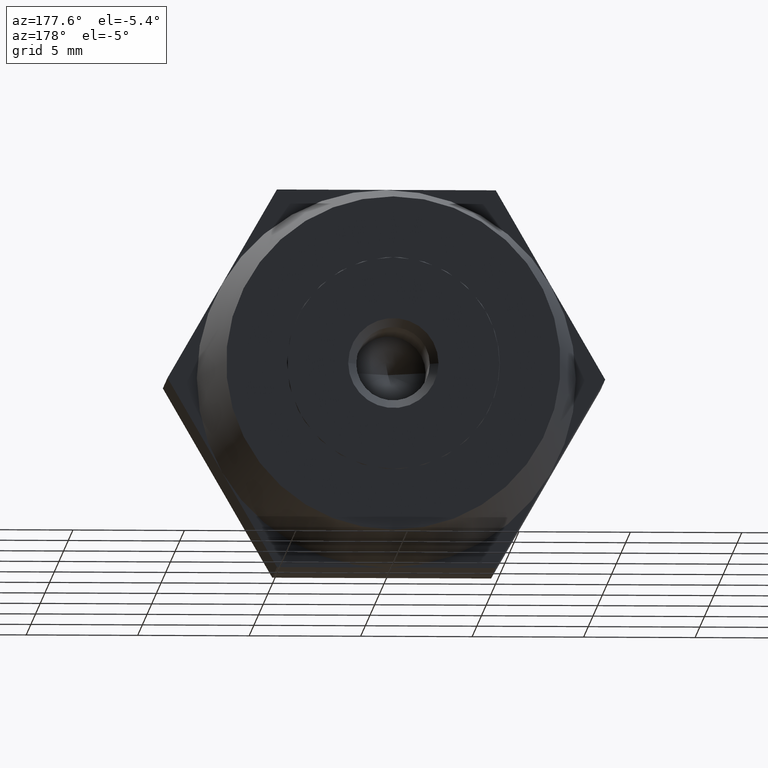
[diagram: clean part render]
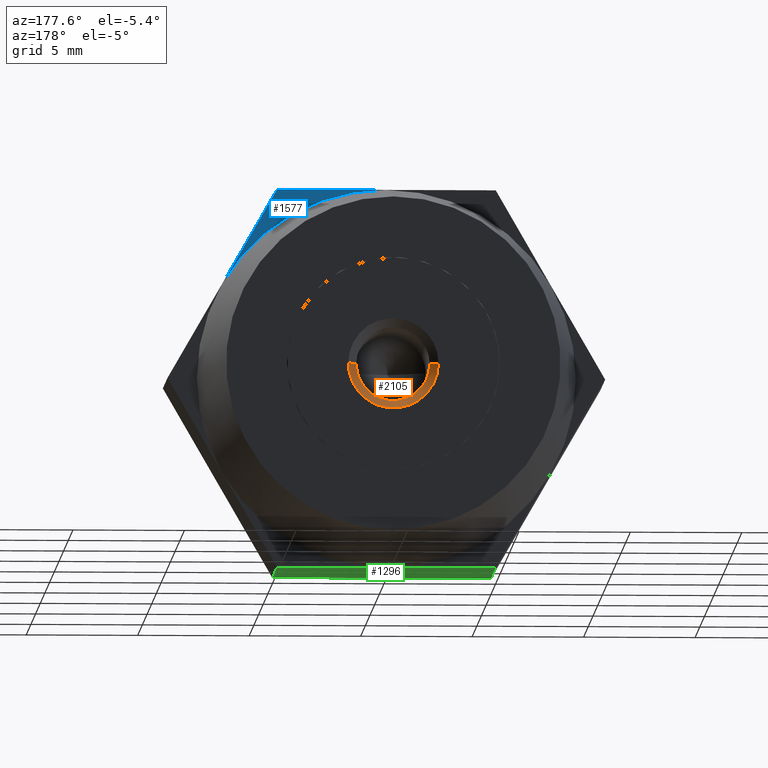
[diagram: same view with three faces highlighted in distinct colors, each labeled with its STEP entity id]
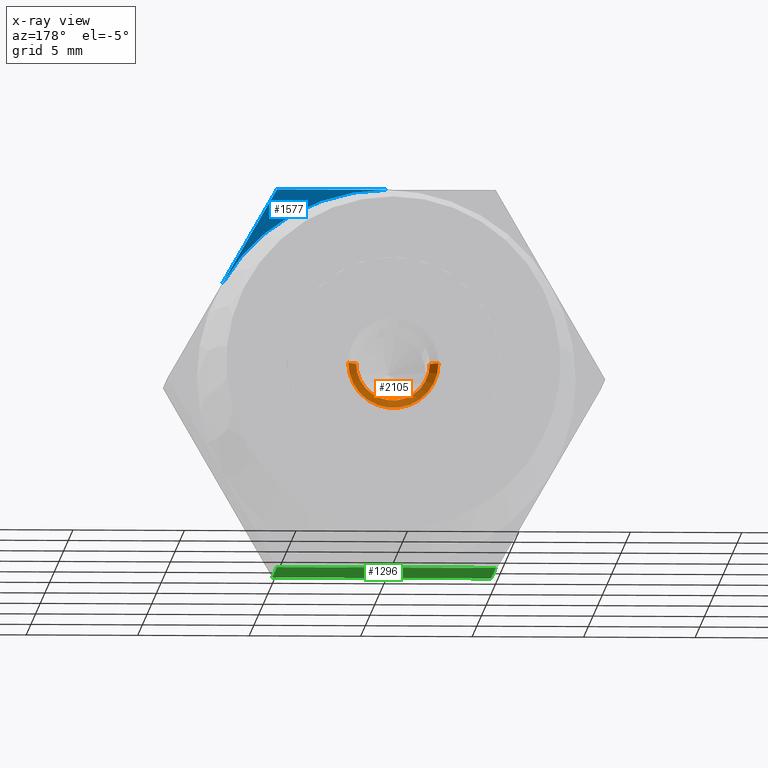
[diagram: x-ray of the same camera — body ghosted, the three highlighted faces saturated]
A machine part, auxiliary view with three faces highlighted in distinct colors.
The next image is the same camera in x-ray (body ghosted, the three faces saturated) — at least one of them is partly hidden behind the body in this view.
Their STEP definitions:

[orange] entity #2105 — the highlighted conical surface has half-angle 45 deg.
#78 = CARTESIAN_POINT ( 'NONE',  ( 0.0000000000000000000, 6.500000000000000000, 2.024999999999999900 ) ) ;
#82 = CARTESIAN_POINT ( 'NONE',  ( 2.479909768273389800E-016, 6.500000000000000000, -2.024999999999999900 ) ) ;
#103 = DIRECTION ( 'NONE',  ( 0.0000000000000000000, 0.7071067811865470200, 0.7071067811865480200 ) ) ;
#140 = DIRECTION ( 'NONE',  ( 0.0000000000000000000, 0.0000000000000000000, 1.000000000000000000 ) ) ;
#224 = FACE_OUTER_BOUND ( 'NONE', #770, .T. ) ;
#246 = DIRECTION ( 'NONE',  ( 0.0000000000000000000, 0.0000000000000000000, 1.000000000000000000 ) ) ;
#521 = EDGE_CURVE ( 'NONE', #2975, #1603, #1273, .T. ) ;
#567 = VERTEX_POINT ( 'NONE', #2158 ) ;
#770 = EDGE_LOOP ( 'NONE', ( #1065, #2261, #1220, #3234 ) ) ;
#853 = VECTOR ( 'NONE', #103, 1000.000000000000000 ) ;
#873 = CARTESIAN_POINT ( 'NONE',  ( 0.0000000000000000000, 6.125000000000000000, 1.649999999999999900 ) ) ;
#1065 = ORIENTED_EDGE ( 'NONE', *, *, #521, .F. ) ;
#1114 = EDGE_CURVE ( 'NONE', #2598, #2975, #1166, .T. ) ;
#1166 = CIRCLE ( 'NONE', #2487, 1.649999999999999900 ) ;
#1220 = ORIENTED_EDGE ( 'NONE', *, *, #3073, .T. ) ;
#1273 = LINE ( 'NONE', #82, #2401 ) ;
#1310 = CARTESIAN_POINT ( 'NONE',  ( 0.0000000000000000000, 6.500000000000000000, 0.0000000000000000000 ) ) ;
#1315 = DIRECTION ( 'NONE',  ( 0.0000000000000000000, 1.000000000000000000, 0.0000000000000000000 ) ) ;
#1525 = CARTESIAN_POINT ( 'NONE',  ( 2.020667218593132800E-016, 6.125000000000000000, -1.649999999999999900 ) ) ;
#1603 = VERTEX_POINT ( 'NONE', #1660 ) ;
#1644 = AXIS2_PLACEMENT_3D ( 'NONE', #3855, #3589, #246 ) ;
#1653 = LINE ( 'NONE', #78, #853 ) ;
#1658 = DIRECTION ( 'NONE',  ( 0.0000000000000000000, 1.000000000000000000, 0.0000000000000000000 ) ) ;
#1660 = CARTESIAN_POINT ( 'NONE',  ( 2.479909768273389800E-016, 6.500000000000000000, -2.024999999999999900 ) ) ;
#2105 = ADVANCED_FACE ( 'NONE', ( #224 ), #3748, .F. ) ;
#2158 = CARTESIAN_POINT ( 'NONE',  ( 0.0000000000000000000, 6.500000000000000000, 2.024999999999999900 ) ) ;
#2261 = ORIENTED_EDGE ( 'NONE', *, *, #1114, .F. ) ;
#2378 = AXIS2_PLACEMENT_3D ( 'NONE', #1310, #1658, #140 ) ;
#2401 = VECTOR ( 'NONE', #2776, 1000.000000000000000 ) ;
#2487 = AXIS2_PLACEMENT_3D ( 'NONE', #2555, #1315, #3432 ) ;
#2555 = CARTESIAN_POINT ( 'NONE',  ( 0.0000000000000000000, 6.125000000000000000, 0.0000000000000000000 ) ) ;
#2598 = VERTEX_POINT ( 'NONE', #873 ) ;
#2776 = DIRECTION ( 'NONE',  ( 8.659560562354939000E-017, 0.7071067811865470200, -0.7071067811865480200 ) ) ;
#2975 = VERTEX_POINT ( 'NONE', #1525 ) ;
#3073 = EDGE_CURVE ( 'NONE', #2598, #567, #1653, .T. ) ;
#3234 = ORIENTED_EDGE ( 'NONE', *, *, #3467, .T. ) ;
#3427 = CIRCLE ( 'NONE', #1644, 2.024999999999999900 ) ;
#3432 = DIRECTION ( 'NONE',  ( 0.0000000000000000000, 0.0000000000000000000, 1.000000000000000000 ) ) ;
#3467 = EDGE_CURVE ( 'NONE', #567, #1603, #3427, .T. ) ;
#3589 = DIRECTION ( 'NONE',  ( 0.0000000000000000000, 1.000000000000000000, 0.0000000000000000000 ) ) ;
#3748 = CONICAL_SURFACE ( 'NONE', #2378, 2.024999999999999900, 0.7853981633974490600 ) ;
#3855 = CARTESIAN_POINT ( 'NONE',  ( 0.0000000000000000000, 6.500000000000000000, 0.0000000000000000000 ) ) ;

[blue] entity #1577 — the highlighted planar face has unit normal (0, 1, 0).
#48 = EDGE_CURVE ( 'NONE', #3276, #3831, #1177, .T. ) ;
#666 = EDGE_LOOP ( 'NONE', ( #1683, #3461, #2641 ) ) ;
#869 = DIRECTION ( 'NONE',  ( 1.000000000000000000, 0.0000000000000000000, 1.767428939690774800E-016 ) ) ;
#1082 = CARTESIAN_POINT ( 'NONE',  ( -1.502314598737160000E-015, 2.500000000000000000, 8.500000000000000000 ) ) ;
#1093 = VECTOR ( 'NONE', #869, 1000.000000000000000 ) ;
#1134 = LINE ( 'NONE', #1899, #2798 ) ;
#1177 = LINE ( 'NONE', #3827, #1093 ) ;
#1577 = ADVANCED_FACE ( 'NONE', ( #2543 ), #2080, .T. ) ;
#1683 = ORIENTED_EDGE ( 'NONE', *, *, #3765, .F. ) ;
#1792 = CARTESIAN_POINT ( 'NONE',  ( 0.0000000000000000000, 2.500000000000000000, 0.0000000000000000000 ) ) ;
#1899 = CARTESIAN_POINT ( 'NONE',  ( 4.907477288111820700, 2.500000000000000000, 8.500000000000000000 ) ) ;
#1905 = DIRECTION ( 'NONE',  ( 0.0000000000000000000, 0.0000000000000000000, 1.000000000000000000 ) ) ;
#1962 = CARTESIAN_POINT ( 'NONE',  ( 4.907477288111820700, 2.500000000000000000, 8.500000000000000000 ) ) ;
#2080 = PLANE ( 'NONE',  #2563 ) ;
#2144 = CARTESIAN_POINT ( 'NONE',  ( 0.0000000000000000000, 2.500000000000000000, 0.0000000000000000000 ) ) ;
#2159 = DIRECTION ( 'NONE',  ( 0.0000000000000000000, 0.0000000000000000000, 1.000000000000000000 ) ) ;
#2182 = AXIS2_PLACEMENT_3D ( 'NONE', #2144, #2490, #2159 ) ;
#2245 = DIRECTION ( 'NONE',  ( 0.4999999999999998900, 0.0000000000000000000, -0.8660254037844387100 ) ) ;
#2480 = CARTESIAN_POINT ( 'NONE',  ( 7.361215932167730200, 2.500000000000000000, 4.250000000000000000 ) ) ;
#2490 = DIRECTION ( 'NONE',  ( 0.0000000000000000000, 1.000000000000000000, 0.0000000000000000000 ) ) ;
#2543 = FACE_OUTER_BOUND ( 'NONE', #666, .T. ) ;
#2563 = AXIS2_PLACEMENT_3D ( 'NONE', #1792, #2932, #1905 ) ;
#2602 = CIRCLE ( 'NONE', #2182, 8.500000000000000000 ) ;
#2641 = ORIENTED_EDGE ( 'NONE', *, *, #2807, .T. ) ;
#2798 = VECTOR ( 'NONE', #2245, 1000.000000000000000 ) ;
#2807 = EDGE_CURVE ( 'NONE', #3831, #3558, #1134, .T. ) ;
#2932 = DIRECTION ( 'NONE',  ( 0.0000000000000000000, 1.000000000000000000, 0.0000000000000000000 ) ) ;
#3276 = VERTEX_POINT ( 'NONE', #1082 ) ;
#3461 = ORIENTED_EDGE ( 'NONE', *, *, #48, .T. ) ;
#3558 = VERTEX_POINT ( 'NONE', #2480 ) ;
#3765 = EDGE_CURVE ( 'NONE', #3276, #3558, #2602, .T. ) ;
#3827 = CARTESIAN_POINT ( 'NONE',  ( -4.907477288111829600, 2.500000000000000000, 8.500000000000000000 ) ) ;
#3831 = VERTEX_POINT ( 'NONE', #1962 ) ;

[green] entity #1296 — the highlighted planar face has unit normal (0, 0, 1).
#19 = EDGE_CURVE ( 'NONE', #2049, #1268, #2041, .T. ) ;
#151 = CARTESIAN_POINT ( 'NONE',  ( 4.907477288111810100, 2.500000000000000000, -8.500000000000000000 ) ) ;
#273 = VECTOR ( 'NONE', #1720, 1000.000000000000000 ) ;
#291 = CARTESIAN_POINT ( 'NONE',  ( 4.907477288111810100, 2.500000000000000000, -8.500000000000000000 ) ) ;
#431 = FACE_OUTER_BOUND ( 'NONE', #1025, .T. ) ;
#444 = DIRECTION ( 'NONE',  ( 0.0000000000000000000, -1.000000000000000000, 0.0000000000000000000 ) ) ;
#517 = EDGE_CURVE ( 'NONE', #1104, #3357, #1950, .T. ) ;
#580 = DIRECTION ( 'NONE',  ( -1.000000000000000000, 0.0000000000000000000, 0.0000000000000000000 ) ) ;
#664 = LINE ( 'NONE', #711, #1986 ) ;
#711 = CARTESIAN_POINT ( 'NONE',  ( -4.907477288111829600, 2.500000000000000000, -8.500000000000000000 ) ) ;
#713 = VERTEX_POINT ( 'NONE', #968 ) ;
#786 = CARTESIAN_POINT ( 'NONE',  ( 4.907477288111810100, -2.500000000000000000, -8.500000000000000000 ) ) ;
#837 = LINE ( 'NONE', #3214, #273 ) ;
#886 = VERTEX_POINT ( 'NONE', #1841 ) ;
#901 = VECTOR ( 'NONE', #580, 1000.000000000000000 ) ;
#968 = CARTESIAN_POINT ( 'NONE',  ( -4.907477288111829600, -2.500000000000000000, -8.500000000000000000 ) ) ;
#1025 = EDGE_LOOP ( 'NONE', ( #2782, #3355, #3452, #1993, #1116, #1293 ) ) ;
#1059 = DIRECTION ( 'NONE',  ( -1.000000000000000000, 0.0000000000000000000, 0.0000000000000000000 ) ) ;
#1061 = CARTESIAN_POINT ( 'NONE',  ( -4.907477288111829600, 2.500000000000000000, -8.500000000000000000 ) ) ;
#1073 = PLANE ( 'NONE',  #1119 ) ;
#1104 = VERTEX_POINT ( 'NONE', #2239 ) ;
#1116 = ORIENTED_EDGE ( 'NONE', *, *, #1357, .F. ) ;
#1119 = AXIS2_PLACEMENT_3D ( 'NONE', #151, #1685, #3740 ) ;
#1131 = EDGE_CURVE ( 'NONE', #1268, #713, #664, .T. ) ;
#1268 = VERTEX_POINT ( 'NONE', #1061 ) ;
#1293 = ORIENTED_EDGE ( 'NONE', *, *, #517, .T. ) ;
#1296 = ADVANCED_FACE ( 'NONE', ( #431 ), #1073, .F. ) ;
#1327 = VECTOR ( 'NONE', #3655, 1000.000000000000000 ) ;
#1357 = EDGE_CURVE ( 'NONE', #1104, #2049, #837, .T. ) ;
#1475 = DIRECTION ( 'NONE',  ( -1.000000000000000000, 0.0000000000000000000, 0.0000000000000000000 ) ) ;
#1605 = VECTOR ( 'NONE', #1059, 1000.000000000000000 ) ;
#1685 = DIRECTION ( 'NONE',  ( 0.0000000000000000000, 0.0000000000000000000, 1.000000000000000000 ) ) ;
#1720 = DIRECTION ( 'NONE',  ( -1.000000000000000000, 0.0000000000000000000, 0.0000000000000000000 ) ) ;
#1809 = CARTESIAN_POINT ( 'NONE',  ( 4.907477288111810100, 2.500000000000000000, -8.500000000000000000 ) ) ;
#1841 = CARTESIAN_POINT ( 'NONE',  ( 0.0000000000000000000, -2.500000000000000000, -8.500000000000000000 ) ) ;
#1903 = LINE ( 'NONE', #2092, #901 ) ;
#1950 = LINE ( 'NONE', #1809, #1327 ) ;
#1956 = VECTOR ( 'NONE', #1475, 1000.000000000000000 ) ;
#1986 = VECTOR ( 'NONE', #444, 1000.000000000000000 ) ;
#1993 = ORIENTED_EDGE ( 'NONE', *, *, #19, .F. ) ;
#2034 = LINE ( 'NONE', #2771, #1605 ) ;
#2041 = LINE ( 'NONE', #291, #1956 ) ;
#2049 = VERTEX_POINT ( 'NONE', #3102 ) ;
#2092 = CARTESIAN_POINT ( 'NONE',  ( 4.907477288111810100, -2.500000000000000000, -8.500000000000000000 ) ) ;
#2239 = CARTESIAN_POINT ( 'NONE',  ( 4.907477288111810100, 2.500000000000000000, -8.500000000000000000 ) ) ;
#2475 = EDGE_CURVE ( 'NONE', #886, #713, #1903, .T. ) ;
#2771 = CARTESIAN_POINT ( 'NONE',  ( 4.907477288111810100, -2.500000000000000000, -8.500000000000000000 ) ) ;
#2782 = ORIENTED_EDGE ( 'NONE', *, *, #3220, .T. ) ;
#3102 = CARTESIAN_POINT ( 'NONE',  ( 0.0000000000000000000, 2.500000000000000000, -8.500000000000000000 ) ) ;
#3214 = CARTESIAN_POINT ( 'NONE',  ( 4.907477288111810100, 2.500000000000000000, -8.500000000000000000 ) ) ;
#3220 = EDGE_CURVE ( 'NONE', #3357, #886, #2034, .T. ) ;
#3355 = ORIENTED_EDGE ( 'NONE', *, *, #2475, .T. ) ;
#3357 = VERTEX_POINT ( 'NONE', #786 ) ;
#3452 = ORIENTED_EDGE ( 'NONE', *, *, #1131, .F. ) ;
#3655 = DIRECTION ( 'NONE',  ( 0.0000000000000000000, -1.000000000000000000, 0.0000000000000000000 ) ) ;
#3740 = DIRECTION ( 'NONE',  ( 1.000000000000000000, 0.0000000000000000000, 0.0000000000000000000 ) ) ;